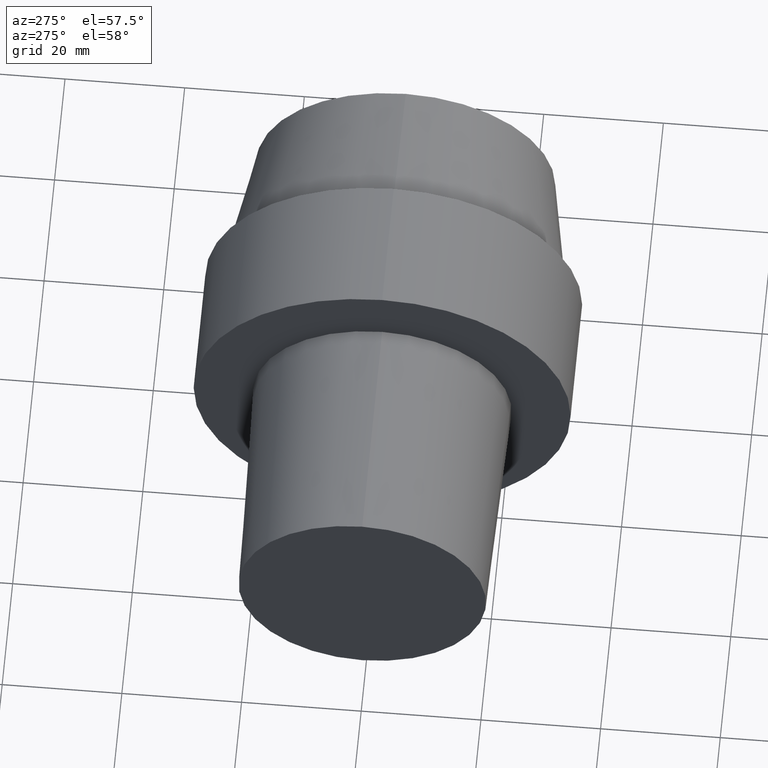
[diagram: clean part render]
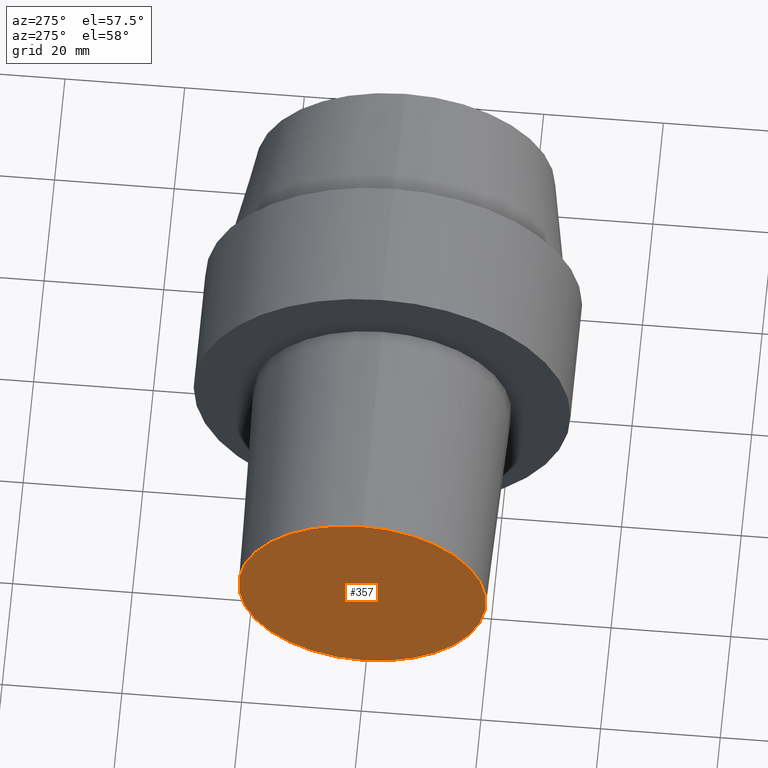
[diagram: same view with one face highlighted and labeled with its STEP entity id]
A machine part, auxiliary view. The second image highlights one B-rep face of the part: STEP entity #357.
In plain terms, the highlighted planar face has unit normal (-1, 0, 0).
Its self-contained STEP definition (entity closure, byte-faithful):
#17 = DIRECTION ( 'NONE',  ( 0.000000000000000000, 0.000000000000000000, 1.000000000000000000 ) ) ;
#46 = DIRECTION ( 'NONE',  ( 1.000000000000000000, 0.000000000000000000, 0.000000000000000000 ) ) ;
#49 = AXIS2_PLACEMENT_3D ( 'NONE', #311, #46, #204 ) ;
#51 = CARTESIAN_POINT ( 'NONE',  ( -37.99999996124000035, 0.000000000000000000, 0.000000000000000000 ) ) ;
#111 = CARTESIAN_POINT ( 'NONE',  ( -37.99999996124000035, 0.000000000000000000, -20.68052847366897140 ) ) ;
#135 = CARTESIAN_POINT ( 'NONE',  ( -37.99999996124000035, 2.590810135574270981E-15, 20.68052847366897140 ) ) ;
#154 = AXIS2_PLACEMENT_3D ( 'NONE', #227, #377, #202 ) ;
#175 = ORIENTED_EDGE ( 'NONE', *, *, #386, .F. ) ;
#202 = DIRECTION ( 'NONE',  ( 0.000000000000000000, 0.000000000000000000, -1.000000000000000000 ) ) ;
#204 = DIRECTION ( 'NONE',  ( 0.000000000000000000, 0.000000000000000000, -1.000000000000000000 ) ) ;
#221 = CIRCLE ( 'NONE', #49, 20.68052847366897140 ) ;
#225 = FACE_OUTER_BOUND ( 'NONE', #371, .T. ) ;
#227 = CARTESIAN_POINT ( 'NONE',  ( -37.99999996124000035, 0.000000000000000000, 0.000000000000000000 ) ) ;
#250 = ORIENTED_EDGE ( 'NONE', *, *, #381, .F. ) ;
#307 = VERTEX_POINT ( 'NONE', #111 ) ;
#311 = CARTESIAN_POINT ( 'NONE',  ( -37.99999996124000035, 0.000000000000000000, 0.000000000000000000 ) ) ;
#314 = DIRECTION ( 'NONE',  ( -1.000000000000000000, 0.000000000000000000, 0.000000000000000000 ) ) ;
#318 = PLANE ( 'NONE',  #338 ) ;
#319 = CIRCLE ( 'NONE', #154, 20.68052847366897140 ) ;
#322 = VERTEX_POINT ( 'NONE', #135 ) ;
#338 = AXIS2_PLACEMENT_3D ( 'NONE', #51, #314, #17 ) ;
#357 = ADVANCED_FACE ( 'NONE', ( #225 ), #318, .T. ) ;
#371 = EDGE_LOOP ( 'NONE', ( #175, #250 ) ) ;
#377 = DIRECTION ( 'NONE',  ( 1.000000000000000000, 0.000000000000000000, 0.000000000000000000 ) ) ;
#381 = EDGE_CURVE ( 'NONE', #322, #307, #221, .T. ) ;
#386 = EDGE_CURVE ( 'NONE', #307, #322, #319, .T. ) ;